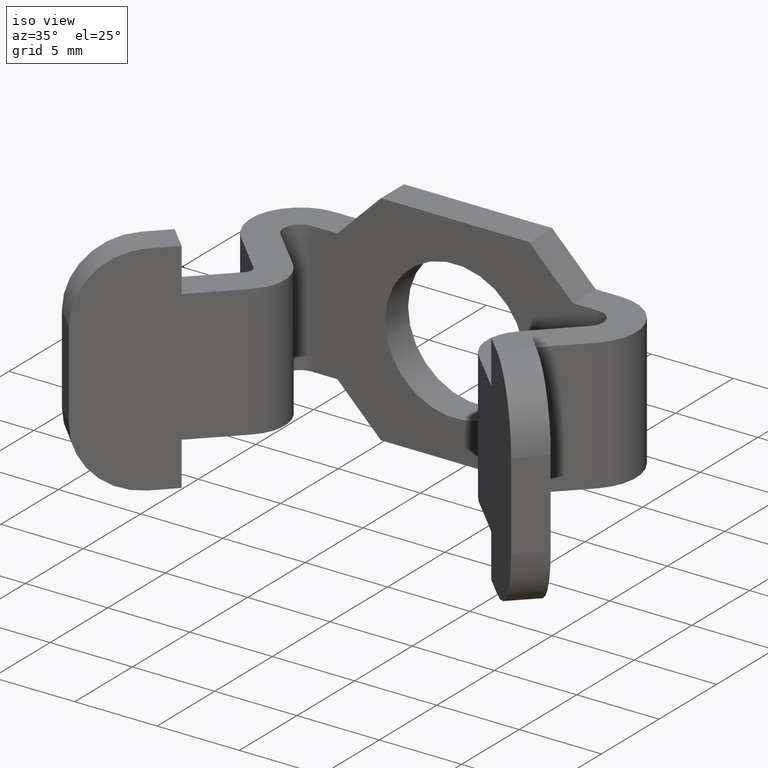
[diagram: clean part render]
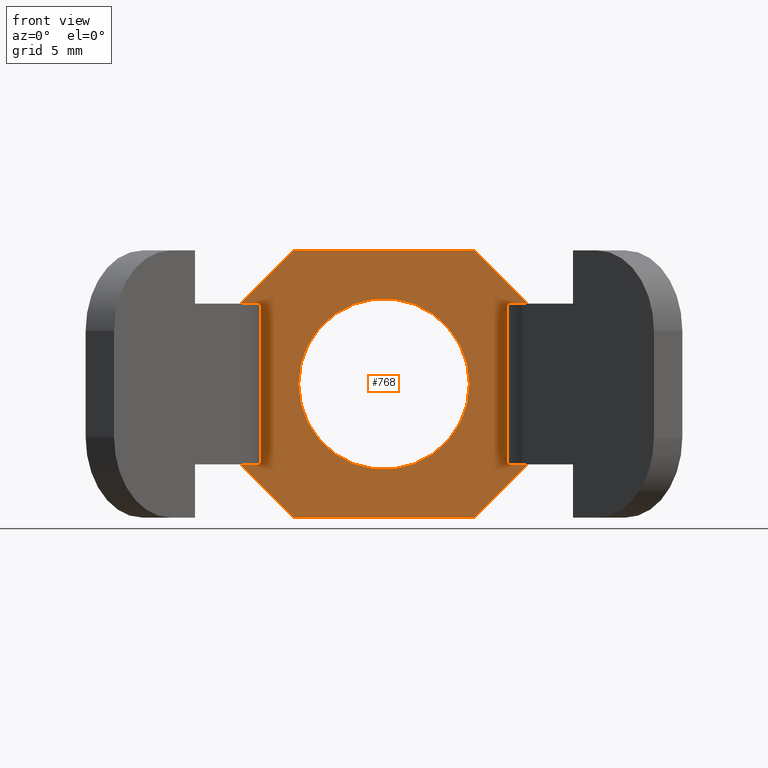
[diagram: tour spotlight — one face highlighted and labeled with its STEP entity id]
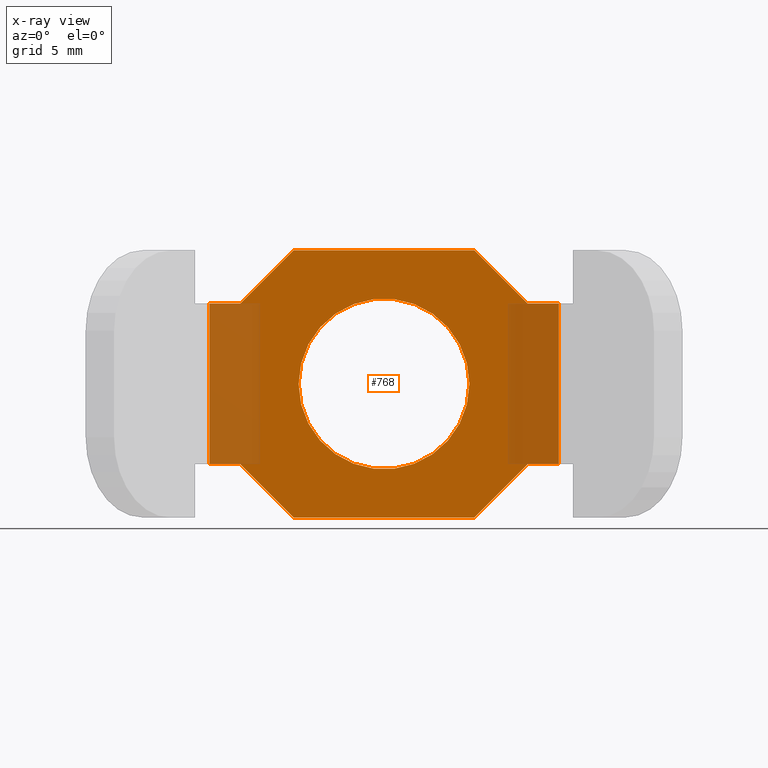
[diagram: x-ray of the same camera — body ghosted, this tour face saturated]
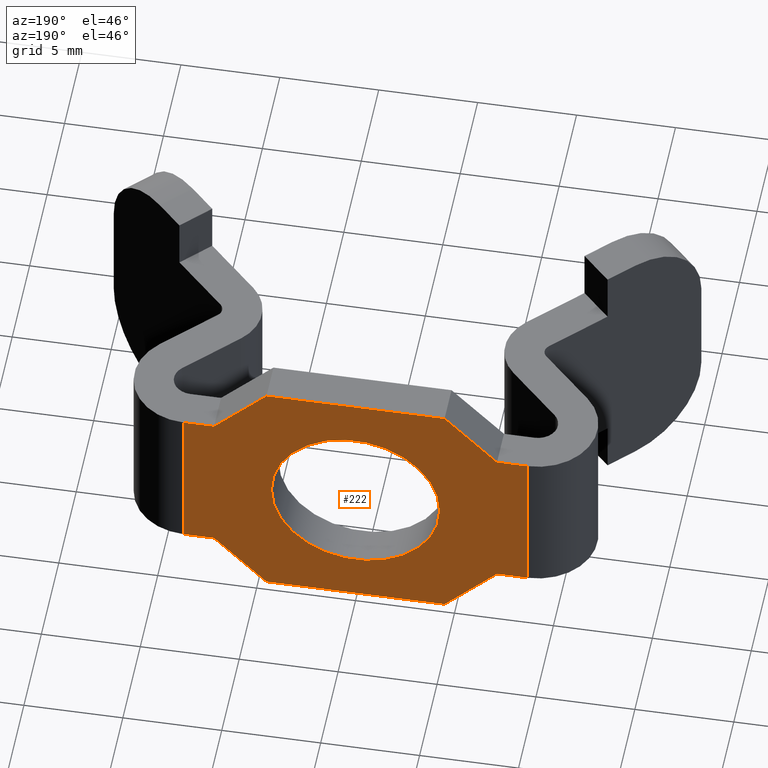
[diagram: tour spotlight — one face highlighted and labeled with its STEP entity id]
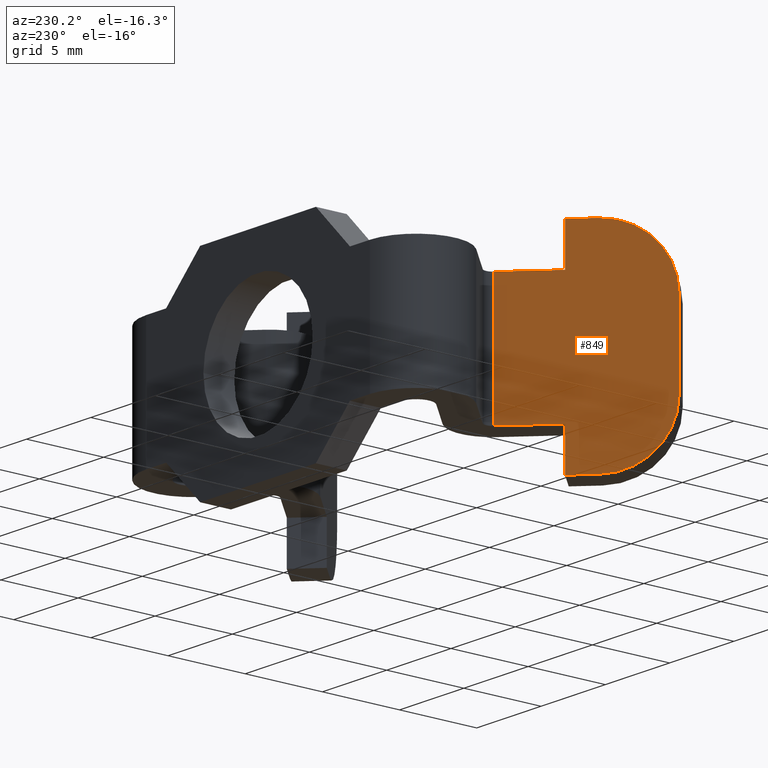
[diagram: tour spotlight — one face highlighted and labeled with its STEP entity id]
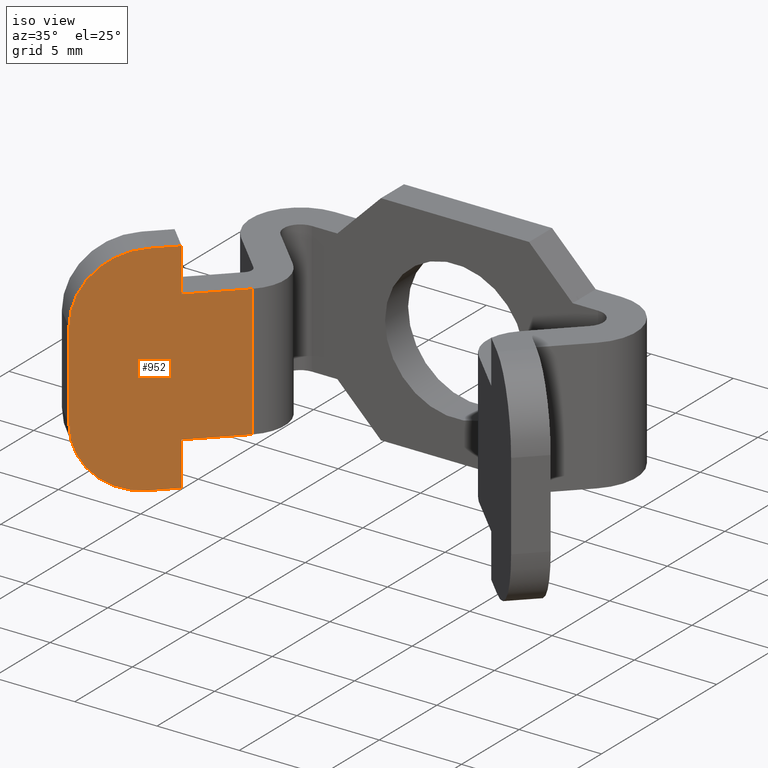
[diagram: tour spotlight — one face highlighted and labeled with its STEP entity id]
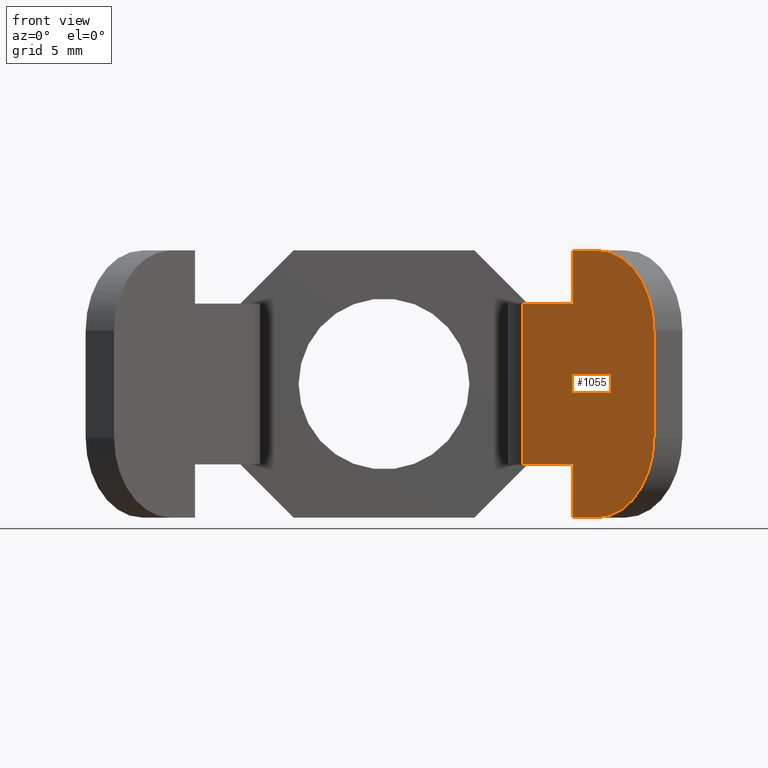
[diagram: tour spotlight — one face highlighted and labeled with its STEP entity id]
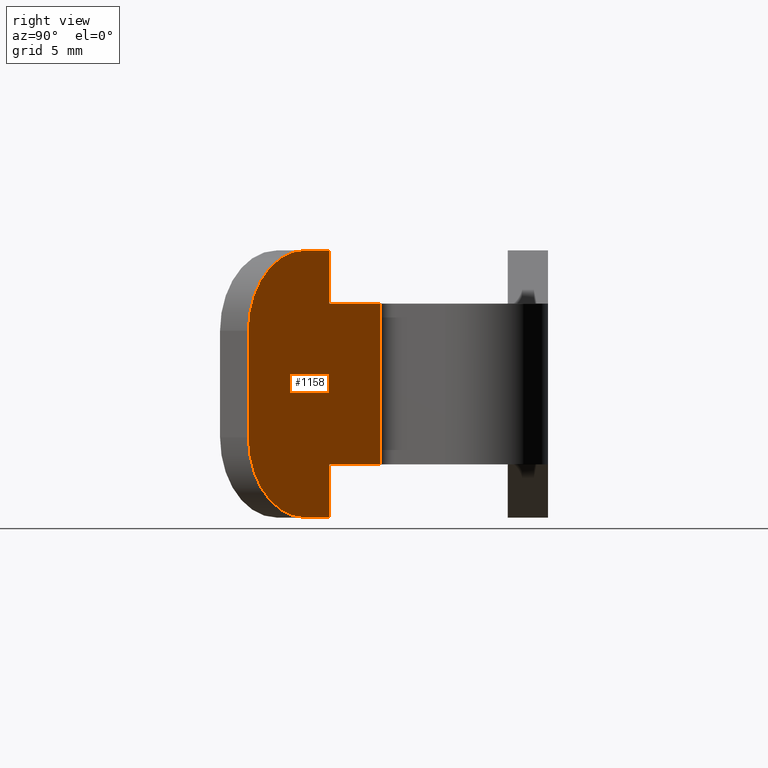
[diagram: tour spotlight — one face highlighted and labeled with its STEP entity id]
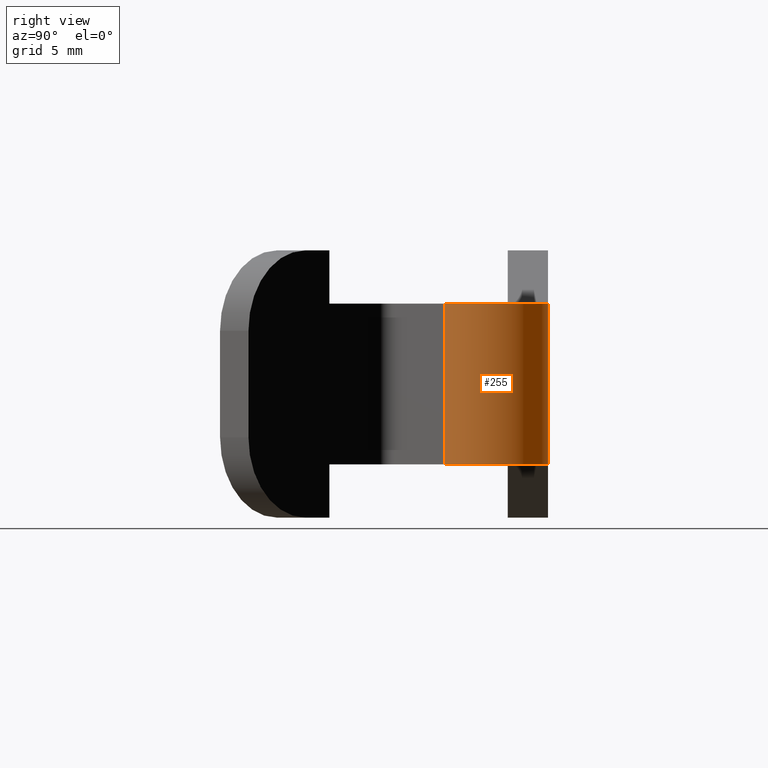
[diagram: tour spotlight — one face highlighted and labeled with its STEP entity id]
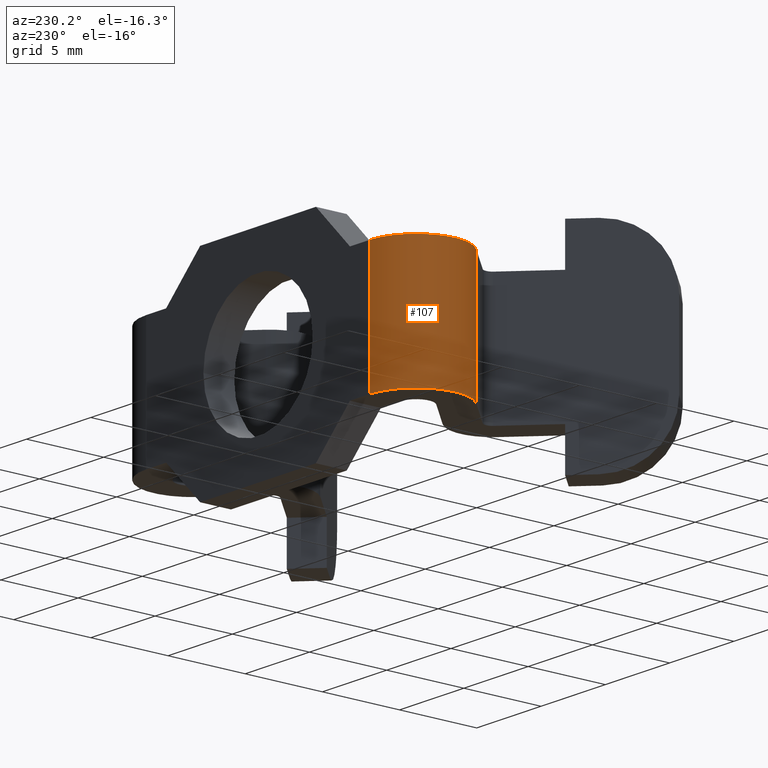
[diagram: tour spotlight — one face highlighted and labeled with its STEP entity id]
A machine part: a face-by-face anatomy tour. The part has 43 B-rep faces; the first image is the clean iso view, then the 8 largest visible faces are spotlighted one at a time (largest first), each with its STEP entity span.

Face 1 — front view, entity #768. An x-ray twin of the same camera follows (body ghosted, this face saturated) — the face is partly hidden behind the body. In plain terms, the highlighted planar face has unit normal (0, 1, 0).
Definition (entity closure, byte-faithful):
#398=CARTESIAN_POINT('',(8.699999999987085,-2.0,-3.999999999984405));
#399=VERTEX_POINT('',#398);
#408=CARTESIAN_POINT('',(8.699999999987085,-2.0,3.999999999983812));
#409=VERTEX_POINT('',#408);
#417=CARTESIAN_POINT('',(8.699999999987085,-2.0,-3.999999999984405));
#418=DIRECTION('',(0.0,0.0,1.0));
#419=VECTOR('',#418,7.999999999968217);
#420=LINE('',#417,#419);
#421=EDGE_CURVE('',#399,#409,#420,.T.);
#431=CARTESIAN_POINT('',(-8.699999813927661,-2.000000000000455,-3.999999999984405));
#432=VERTEX_POINT('',#431);
#433=CARTESIAN_POINT('',(-8.699999813927661,-2.000000000000455,3.999999999983684));
#434=VERTEX_POINT('',#433);
#435=CARTESIAN_POINT('',(-8.699999813927661,-2.000000000000455,-3.999999999984405));
#436=DIRECTION('',(0.0,0.0,1.0));
#437=VECTOR('',#436,7.999999999968090);
#438=LINE('',#435,#437);
#439=EDGE_CURVE('',#432,#434,#438,.T.);
#538=CARTESIAN_POINT('',(4.499999999982265,-2.0,-6.649999999973716));
#539=VERTEX_POINT('',#538);
#546=CARTESIAN_POINT('',(-4.499999999981810,-2.0,-6.649999999973716));
#547=VERTEX_POINT('',#546);
#548=CARTESIAN_POINT('',(4.499999999982265,-2.0,-6.649999999973716));
#549=DIRECTION('',(-1.0,0.0,0.0));
#550=VECTOR('',#549,8.999999999964075);
#551=LINE('',#548,#550);
#552=EDGE_CURVE('',#539,#547,#551,.T.);
#568=CARTESIAN_POINT('',(-4.499999999981810,-2.0,6.649999999973261));
#569=VERTEX_POINT('',#568);
#576=CARTESIAN_POINT('',(4.499999999982265,-2.0,6.649999999973261));
#577=VERTEX_POINT('',#576);
#578=CARTESIAN_POINT('',(4.499999999982265,-2.0,6.649999999973261));
#579=DIRECTION('',(-1.0,0.0,0.0));
#580=VECTOR('',#579,8.999999999964075);
#581=LINE('',#578,#580);
#582=EDGE_CURVE('',#577,#569,#581,.T.);
#601=CARTESIAN_POINT('',(7.149999999971442,-2.0,3.999999999983812));
#602=VERTEX_POINT('',#601);
#603=CARTESIAN_POINT('',(4.499999999982265,-2.0,6.649999999973261));
#604=DIRECTION('',(0.707106781186511,0.0,-0.707106781186584));
#605=VECTOR('',#604,3.747665940273588);
#606=LINE('',#603,#605);
#607=EDGE_CURVE('',#577,#602,#606,.T.);
#623=CARTESIAN_POINT('',(7.149999999971442,-2.0,-3.999999999984405));
#624=VERTEX_POINT('',#623);
#631=CARTESIAN_POINT('',(4.499999999982265,-2.0,-6.649999999973716));
#632=DIRECTION('',(0.707106781186530,0.0,0.707106781186565));
#633=VECTOR('',#632,3.747665940273491);
#634=LINE('',#631,#633);
#635=EDGE_CURVE('',#539,#624,#634,.T.);
#647=CARTESIAN_POINT('',(-7.149999999970987,-2.0,3.999999999983684));
#648=VERTEX_POINT('',#647);
#655=CARTESIAN_POINT('',(-4.499999999981810,-2.0,6.649999999973261));
#656=DIRECTION('',(-0.707106781186494,0.0,-0.707106781186601));
#657=VECTOR('',#656,3.747665940273679);
#658=LINE('',#655,#657);
#659=EDGE_CURVE('',#569,#648,#658,.T.);
#673=CARTESIAN_POINT('',(-7.149999999970987,-2.0,-3.999999999984404));
#674=VERTEX_POINT('',#673);
#675=CARTESIAN_POINT('',(-4.499999999981810,-2.0,-6.649999999973716));
#676=DIRECTION('',(-0.707106781186530,0.0,0.707106781186566));
#677=VECTOR('',#676,3.747665940273491);
#678=LINE('',#675,#677);
#679=EDGE_CURVE('',#547,#674,#678,.T.);
#695=CARTESIAN_POINT('',(4.249999999983174,-2.0,-6.838974E-014));
#696=VERTEX_POINT('',#695);
#703=CARTESIAN_POINT('',(-4.249999999983174,-2.0,-6.838974E-014));
#704=VERTEX_POINT('',#703);
#705=CARTESIAN_POINT('',(0.0,-2.0,-6.838974E-014));
#706=DIRECTION('',(0.0,-1.0,-3.419153E-014));
#707=DIRECTION('',(1.0,0.0,0.0));
#708=AXIS2_PLACEMENT_3D('',#705,#706,#707);
#709=CIRCLE('',#708,4.249999999983174);
#710=EDGE_CURVE('',#696,#704,#709,.T.);
#712=CARTESIAN_POINT('',(0.0,-2.0,-6.838974E-014));
#713=DIRECTION('',(0.0,-1.0,-3.419153E-014));
#714=DIRECTION('',(1.0,0.0,0.0));
#715=AXIS2_PLACEMENT_3D('',#712,#713,#714);
#716=CIRCLE('',#715,4.249999999983174);
#717=EDGE_CURVE('',#704,#696,#716,.T.);
#725=CARTESIAN_POINT('',(8.725073962264105,-2.0,-6.675101390862892));
#726=DIRECTION('',(0.0,1.0,0.0));
#727=DIRECTION('',(-1.0,0.0,0.0));
#728=AXIS2_PLACEMENT_3D('',#725,#726,#727);
#729=PLANE('',#728);
#730=CARTESIAN_POINT('',(8.699999999987085,-2.0,-3.999999999984405));
#731=DIRECTION('',(-1.0,0.0,0.0));
#732=VECTOR('',#731,1.550000000015643);
#733=LINE('',#730,#732);
#734=EDGE_CURVE('',#399,#624,#733,.T.);
#735=ORIENTED_EDGE('',*,*,#734,.F.);
#736=ORIENTED_EDGE('',*,*,#421,.T.);
#737=CARTESIAN_POINT('',(8.699999999987085,-2.0,3.999999999983812));
#738=DIRECTION('',(-1.0,0.0,0.0));
#739=VECTOR('',#738,1.550000000015643);
#740=LINE('',#737,#739);
#741=EDGE_CURVE('',#409,#602,#740,.T.);
#742=ORIENTED_EDGE('',*,*,#741,.T.);
#743=ORIENTED_EDGE('',*,*,#607,.F.);
#744=ORIENTED_EDGE('',*,*,#582,.T.);
#745=ORIENTED_EDGE('',*,*,#659,.T.);
#746=CARTESIAN_POINT('',(-8.699999813927661,-2.000000000000455,3.999999999983684));
#747=DIRECTION('',(1.0,2.933854E-013,0.0));
#748=VECTOR('',#747,1.549999813956674);
#749=LINE('',#746,#748);
#750=EDGE_CURVE('',#434,#648,#749,.T.);
#751=ORIENTED_EDGE('',*,*,#750,.F.);
#752=ORIENTED_EDGE('',*,*,#439,.F.);
#753=CARTESIAN_POINT('',(-8.699999813927661,-2.000000000000455,-3.999999999984405));
#754=DIRECTION('',(1.0,2.933854E-013,8.595276E-016));
#755=VECTOR('',#754,1.549999813956674);
#756=LINE('',#753,#755);
#757=EDGE_CURVE('',#432,#674,#756,.T.);
#758=ORIENTED_EDGE('',*,*,#757,.T.);
#759=ORIENTED_EDGE('',*,*,#679,.F.);
#760=ORIENTED_EDGE('',*,*,#552,.F.);
#761=ORIENTED_EDGE('',*,*,#635,.T.);
#762=EDGE_LOOP('',(#735,#736,#742,#743,#744,#745,#751,#752,#758,#759,#760,#761));
#763=FACE_OUTER_BOUND('',#762,.T.);
#764=ORIENTED_EDGE('',*,*,#717,.F.);
#765=ORIENTED_EDGE('',*,*,#710,.F.);
#766=EDGE_LOOP('',(#764,#765));
#767=FACE_BOUND('',#766,.T.);
#768=ADVANCED_FACE('',(#763,#767),#729,.F.);

Face 2 — auxiliary view, entity #222. In plain terms, the highlighted planar face has unit normal (0, -1, 0).
Definition (entity closure, byte-faithful):
#80=CARTESIAN_POINT('',(-8.699999813927207,4.547474E-013,-3.999999999984337));
#81=VERTEX_POINT('',#80);
#90=CARTESIAN_POINT('',(-8.699999813927207,0.0,3.999999999983755));
#91=VERTEX_POINT('',#90);
#99=CARTESIAN_POINT('',(-8.699999813927207,3.641398E-013,-3.999999999984337));
#100=DIRECTION('',(0.0,0.0,1.0));
#101=VECTOR('',#100,7.999999999968091);
#102=LINE('',#99,#101);
#103=EDGE_CURVE('',#81,#91,#102,.T.);
#108=CARTESIAN_POINT('',(-8.699999813927207,4.547474E-013,-6.649999999973716));
#109=DIRECTION('',(0.0,-1.0,0.0));
#110=DIRECTION('',(1.0,0.0,0.0));
#111=AXIS2_PLACEMENT_3D('',#108,#109,#110);
#112=PLANE('',#111);
#113=CARTESIAN_POINT('',(8.700000000014370,-4.547474E-013,-3.999999999984336));
#114=VERTEX_POINT('',#113);
#115=CARTESIAN_POINT('',(8.700000000014370,-4.547474E-013,3.999999999983881));
#116=VERTEX_POINT('',#115);
#117=CARTESIAN_POINT('',(8.700000000014370,-4.547474E-013,-3.999999999984336));
#118=DIRECTION('',(0.0,0.0,1.0));
#119=VECTOR('',#118,7.999999999968217);
#120=LINE('',#117,#119);
#121=EDGE_CURVE('',#114,#116,#120,.T.);
#122=ORIENTED_EDGE('',*,*,#121,.F.);
#123=CARTESIAN_POINT('',(7.149999999971442,0.0,-3.999999999984336));
#124=VERTEX_POINT('',#123);
#125=CARTESIAN_POINT('',(7.149999999971442,0.0,-3.999999999984336));
#126=DIRECTION('',(1.0,0.0,0.0));
#127=VECTOR('',#126,1.550000000042928);
#128=LINE('',#125,#127);
#129=EDGE_CURVE('',#124,#114,#128,.T.);
#130=ORIENTED_EDGE('',*,*,#129,.F.);
#131=CARTESIAN_POINT('',(4.499999999982265,0.0,-6.649999999973716));
#132=VERTEX_POINT('',#131);
#133=CARTESIAN_POINT('',(4.499999999982265,0.0,-6.649999999973716));
#134=DIRECTION('',(0.707106781186520,0.0,0.707106781186575));
#135=VECTOR('',#134,3.747665940273539);
#136=LINE('',#133,#135);
#137=EDGE_CURVE('',#132,#124,#136,.T.);
#138=ORIENTED_EDGE('',*,*,#137,.F.);
#139=CARTESIAN_POINT('',(-4.499999999981810,0.0,-6.649999999973716));
#140=VERTEX_POINT('',#139);
#141=CARTESIAN_POINT('',(-4.499999999981810,4.547474E-013,-6.649999999973716));
#142=DIRECTION('',(1.0,0.0,0.0));
#143=VECTOR('',#142,8.999999999964075);
#144=LINE('',#141,#143);
#145=EDGE_CURVE('',#140,#132,#144,.T.);
#146=ORIENTED_EDGE('',*,*,#145,.F.);
#147=CARTESIAN_POINT('',(-7.149999999970987,0.0,-3.999999999984336));
#148=VERTEX_POINT('',#147);
#149=CARTESIAN_POINT('',(-7.149999999970987,0.0,-3.999999999984336));
#150=DIRECTION('',(0.707106781186520,0.0,-0.707106781186575));
#151=VECTOR('',#150,3.747665940273539);
#152=LINE('',#149,#151);
#153=EDGE_CURVE('',#148,#140,#152,.T.);
#154=ORIENTED_EDGE('',*,*,#153,.F.);
#155=CARTESIAN_POINT('',(-8.699999813927207,-5.983652E-030,-3.999999999984337));
#156=DIRECTION('',(1.0,0.0,0.0));
#157=VECTOR('',#156,1.549999813956219);
#158=LINE('',#155,#157);
#159=EDGE_CURVE('',#81,#148,#158,.T.);
#160=ORIENTED_EDGE('',*,*,#159,.F.);
#161=ORIENTED_EDGE('',*,*,#103,.T.);
#162=CARTESIAN_POINT('',(-7.149999999970987,4.547474E-013,3.999999999983753));
#163=VERTEX_POINT('',#162);
#164=CARTESIAN_POINT('',(-7.149999999970987,4.547474E-013,3.999999999983753));
#165=DIRECTION('',(-1.0,0.0,0.0));
#166=VECTOR('',#165,1.549999813956219);
#167=LINE('',#164,#166);
#168=EDGE_CURVE('',#163,#91,#167,.T.);
#169=ORIENTED_EDGE('',*,*,#168,.F.);
#170=CARTESIAN_POINT('',(-4.499999999981810,0.0,6.649999999973261));
#171=VERTEX_POINT('',#170);
#172=CARTESIAN_POINT('',(-4.499999999981810,0.0,6.649999999973261));
#173=DIRECTION('',(-0.707106781186520,0.0,-0.707106781186575));
#174=VECTOR('',#173,3.747665940273539);
#175=LINE('',#172,#174);
#176=EDGE_CURVE('',#171,#163,#175,.T.);
#177=ORIENTED_EDGE('',*,*,#176,.F.);
#178=CARTESIAN_POINT('',(4.499999999982265,0.0,6.649999999973261));
#179=VERTEX_POINT('',#178);
#180=CARTESIAN_POINT('',(-4.499999999981810,0.0,6.649999999973261));
#181=DIRECTION('',(1.0,0.0,0.0));
#182=VECTOR('',#181,8.999999999964075);
#183=LINE('',#180,#182);
#184=EDGE_CURVE('',#171,#179,#183,.T.);
#185=ORIENTED_EDGE('',*,*,#184,.T.);
#186=CARTESIAN_POINT('',(7.149999999971442,0.0,3.999999999983881));
#187=VERTEX_POINT('',#186);
#188=CARTESIAN_POINT('',(7.149999999971442,0.0,3.999999999983881));
#189=DIRECTION('',(-0.707106781186520,0.0,0.707106781186575));
#190=VECTOR('',#189,3.747665940273539);
#191=LINE('',#188,#190);
#192=EDGE_CURVE('',#187,#179,#191,.T.);
#193=ORIENTED_EDGE('',*,*,#192,.F.);
#194=CARTESIAN_POINT('',(8.700000000014370,1.206563E-012,3.999999999983881));
#195=DIRECTION('',(-1.0,1.017282E-013,0.0));
#196=VECTOR('',#195,1.550000000042928);
#197=LINE('',#194,#196);
#198=EDGE_CURVE('',#116,#187,#197,.T.);
#199=ORIENTED_EDGE('',*,*,#198,.F.);
#200=EDGE_LOOP('',(#122,#130,#138,#146,#154,#160,#161,#169,#177,#185,#193,#199));
#201=FACE_OUTER_BOUND('',#200,.T.);
#202=CARTESIAN_POINT('',(-4.249999999983174,0.0,0.0));
#203=VERTEX_POINT('',#202);
#204=CARTESIAN_POINT('',(4.249999999983174,0.0,0.0));
#205=VERTEX_POINT('',#204);
#206=CARTESIAN_POINT('',(0.0,0.0,0.0));
#207=DIRECTION('',(0.0,1.0,3.419153E-014));
#208=DIRECTION('',(1.0,0.0,0.0));
#209=AXIS2_PLACEMENT_3D('',#206,#207,#208);
#210=CIRCLE('',#209,4.249999999983174);
#211=EDGE_CURVE('',#203,#205,#210,.T.);
#212=ORIENTED_EDGE('',*,*,#211,.F.);
#213=CARTESIAN_POINT('',(0.0,0.0,0.0));
#214=DIRECTION('',(0.0,1.0,3.419153E-014));
#215=DIRECTION('',(1.0,0.0,0.0));
#216=AXIS2_PLACEMENT_3D('',#213,#214,#215);
#217=CIRCLE('',#216,4.249999999983174);
#218=EDGE_CURVE('',#205,#203,#217,.T.);
#219=ORIENTED_EDGE('',*,*,#218,.F.);
#220=EDGE_LOOP('',(#212,#219));
#221=FACE_BOUND('',#220,.T.);
#222=ADVANCED_FACE('',(#201,#221),#112,.F.);

Face 3 — auxiliary view, entity #849. In plain terms, the highlighted planar face has unit normal (0.7071, -0.7071, 0).
Definition (entity closure, byte-faithful):
#9=CARTESIAN_POINT('',(-8.296193999966818,-8.353552999930798,-3.999999999984453));
#10=VERTEX_POINT('',#9);
#18=CARTESIAN_POINT('',(-8.296193999966818,-8.353552999930798,3.999999999982958));
#19=VERTEX_POINT('',#18);
#20=CARTESIAN_POINT('',(-8.296193999966818,-8.353552999930798,-3.999999999984453));
#21=DIRECTION('',(0.0,0.0,1.0));
#22=VECTOR('',#21,7.999999999967411);
#23=LINE('',#20,#22);
#24=EDGE_CURVE('',#10,#19,#23,.T.);
#769=CARTESIAN_POINT('',(-14.851828999940153,-14.909187999904589,-6.649999999973716));
#770=DIRECTION('',(0.707106781186548,-0.707106781186548,0.0));
#771=DIRECTION('',(0.707106781186548,0.707106781186548,0.0));
#772=AXIS2_PLACEMENT_3D('',#769,#770,#771);
#773=PLANE('',#772);
#774=CARTESIAN_POINT('',(-14.851828999940608,-14.909187999904134,2.649999999973261));
#775=VERTEX_POINT('',#774);
#776=CARTESIAN_POINT('',(-12.023401875194395,-12.080760875157466,6.649999999973261));
#777=VERTEX_POINT('',#776);
#778=CARTESIAN_POINT('',(-12.023401875193940,-12.080760875158376,2.649999999973261));
#779=DIRECTION('',(-0.707106781186604,0.707106781186491,0.0));
#780=DIRECTION('',(-0.707106781186491,-0.707106781186604,0.0));
#781=AXIS2_PLACEMENT_3D('',#778,#779,#780);
#782=CIRCLE('',#781,4.000000000000354);
#783=EDGE_CURVE('',#775,#777,#782,.T.);
#784=ORIENTED_EDGE('',*,*,#783,.T.);
#785=CARTESIAN_POINT('',(-10.821320562315577,-10.878679562280013,6.649999999973261));
#786=VERTEX_POINT('',#785);
#787=CARTESIAN_POINT('',(-12.023401875193713,-12.080760875158148,6.649999999973261));
#788=DIRECTION('',(0.707106781186547,0.707106781186547,0.0));
#789=VECTOR('',#788,1.699999695747515);
#790=LINE('',#787,#789);
#791=EDGE_CURVE('',#777,#786,#790,.T.);
#792=ORIENTED_EDGE('',*,*,#791,.T.);
#793=CARTESIAN_POINT('',(-10.821320562314668,-10.878679562279103,3.999999999982871));
#794=VERTEX_POINT('',#793);
#795=CARTESIAN_POINT('',(-10.821320562315577,-10.878679562280013,6.649999999973261));
#796=DIRECTION('',(3.432055E-013,3.432055E-013,-1.0));
#797=VECTOR('',#796,2.649999999990390);
#798=LINE('',#795,#797);
#799=EDGE_CURVE('',#786,#794,#798,.T.);
#800=ORIENTED_EDGE('',*,*,#799,.T.);
#801=CARTESIAN_POINT('',(-8.296193999966818,-8.353552999930798,3.999999999982958));
#802=DIRECTION('',(-0.707106781186484,-0.707106781186611,-2.437408E-014));
#803=VECTOR('',#802,3.571068231181202);
#804=LINE('',#801,#803);
#805=EDGE_CURVE('',#19,#794,#804,.T.);
#806=ORIENTED_EDGE('',*,*,#805,.F.);
#807=ORIENTED_EDGE('',*,*,#24,.F.);
#808=CARTESIAN_POINT('',(-10.821320562316032,-10.878679562280013,-3.999999999984539));
#809=VERTEX_POINT('',#808);
#810=CARTESIAN_POINT('',(-8.296193999966818,-8.353552999930798,-3.999999999984453));
#811=DIRECTION('',(-0.707106781186547,-0.707106781186547,-2.412536E-014));
#812=VECTOR('',#811,3.571068231182810);
#813=LINE('',#810,#812);
#814=EDGE_CURVE('',#10,#809,#813,.T.);
#815=ORIENTED_EDGE('',*,*,#814,.T.);
#816=CARTESIAN_POINT('',(-10.821320562315577,-10.878679562280013,-6.649999999973716));
#817=VERTEX_POINT('',#816);
#818=CARTESIAN_POINT('',(-10.821320562315577,-10.878679562280013,-6.649999999973716));
#819=DIRECTION('',(-1.716028E-013,0.0,1.0));
#820=VECTOR('',#819,2.649999999989177);
#821=LINE('',#818,#820);
#822=EDGE_CURVE('',#817,#809,#821,.T.);
#823=ORIENTED_EDGE('',*,*,#822,.F.);
#824=CARTESIAN_POINT('',(-12.023401875194395,-12.080760875157921,-6.649999999973716));
#825=VERTEX_POINT('',#824);
#826=CARTESIAN_POINT('',(-12.023401875193940,-12.080760875158376,-6.649999999973716));
#827=DIRECTION('',(0.707106781186548,0.707106781186548,0.0));
#828=VECTOR('',#827,1.699999695747837);
#829=LINE('',#826,#828);
#830=EDGE_CURVE('',#825,#817,#829,.T.);
#831=ORIENTED_EDGE('',*,*,#830,.F.);
#832=CARTESIAN_POINT('',(-14.851828999940608,-14.909187999904134,-2.649999999973716));
#833=VERTEX_POINT('',#832);
#834=CARTESIAN_POINT('',(-12.023401875193942,-12.080760875158377,-2.649999999973716));
#835=DIRECTION('',(0.707106781186548,-0.707106781186548,0.0));
#836=DIRECTION('',(-0.707106781186548,-0.707106781186548,0.0));
#837=AXIS2_PLACEMENT_3D('',#834,#835,#836);
#838=CIRCLE('',#837,4.000000000000032);
#839=EDGE_CURVE('',#833,#825,#838,.T.);
#840=ORIENTED_EDGE('',*,*,#839,.F.);
#841=CARTESIAN_POINT('',(-14.851828999940153,-14.909187999904589,-2.649999999973716));
#842=DIRECTION('',(0.0,0.0,1.0));
#843=VECTOR('',#842,5.299999999946977);
#844=LINE('',#841,#843);
#845=EDGE_CURVE('',#833,#775,#844,.T.);
#846=ORIENTED_EDGE('',*,*,#845,.T.);
#847=EDGE_LOOP('',(#784,#792,#800,#806,#807,#815,#823,#831,#840,#846));
#848=FACE_OUTER_BOUND('',#847,.T.);
#849=ADVANCED_FACE('',(#848),#773,.F.);

Face 4 — iso view, entity #952. In plain terms, the highlighted planar face has unit normal (-0.7071, 0.7071, 0).
Definition (entity closure, byte-faithful):
#505=CARTESIAN_POINT('',(-6.881980437593938,-9.767766562303223,3.999999999982908));
#506=VERTEX_POINT('',#505);
#514=CARTESIAN_POINT('',(-6.881980437593938,-9.767766562303223,-3.999999999984501));
#515=VERTEX_POINT('',#514);
#516=CARTESIAN_POINT('',(-6.881980437593938,-9.767766562303223,-3.999999999984501));
#517=DIRECTION('',(0.0,0.0,1.0));
#518=VECTOR('',#517,7.999999999967409);
#519=LINE('',#516,#518);
#520=EDGE_CURVE('',#515,#506,#519,.T.);
#855=CARTESIAN_POINT('',(-13.437615437567729,-16.323401562277013,-2.649999999973716));
#856=VERTEX_POINT('',#855);
#864=CARTESIAN_POINT('',(-10.609188312821516,-13.494974437530800,-6.649999999973716));
#865=VERTEX_POINT('',#864);
#872=CARTESIAN_POINT('',(-10.609188312821518,-13.494974437530802,-2.649999999973716));
#873=DIRECTION('',(0.707106781186548,-0.707106781186548,0.0));
#874=DIRECTION('',(-0.707106781186548,-0.707106781186548,0.0));
#875=AXIS2_PLACEMENT_3D('',#872,#873,#874);
#876=CIRCLE('',#875,4.000000000000032);
#877=EDGE_CURVE('',#856,#865,#876,.T.);
#882=CARTESIAN_POINT('',(-6.881980437593938,-9.767766562303223,-6.649999999973716));
#883=DIRECTION('',(-0.707106781186548,0.707106781186548,0.0));
#884=DIRECTION('',(-0.707106781186548,-0.707106781186548,0.0));
#885=AXIS2_PLACEMENT_3D('',#882,#883,#884);
#886=PLANE('',#885);
#887=ORIENTED_EDGE('',*,*,#877,.T.);
#888=CARTESIAN_POINT('',(-9.407106999943608,-12.292893124652892,-6.649999999973716));
#889=VERTEX_POINT('',#888);
#890=CARTESIAN_POINT('',(-9.407106999943604,-12.292893124652888,-6.649999999973716));
#891=DIRECTION('',(-0.707106781186548,-0.707106781186548,0.0));
#892=VECTOR('',#891,1.699999695747199);
#893=LINE('',#890,#892);
#894=EDGE_CURVE('',#889,#865,#893,.T.);
#895=ORIENTED_EDGE('',*,*,#894,.F.);
#896=CARTESIAN_POINT('',(-9.407106999943608,-12.292893124652892,-3.999999999984539));
#897=VERTEX_POINT('',#896);
#898=CARTESIAN_POINT('',(-9.407106999943608,-12.292893124652892,-6.649999999973716));
#899=DIRECTION('',(0.0,0.0,1.0));
#900=VECTOR('',#899,2.649999999989177);
#901=LINE('',#898,#900);
#902=EDGE_CURVE('',#889,#897,#901,.T.);
#903=ORIENTED_EDGE('',*,*,#902,.T.);
#904=CARTESIAN_POINT('',(-9.407106999943608,-12.292893124652892,-3.999999999984539));
#905=DIRECTION('',(0.707106781186547,0.707106781186547,1.057039E-014));
#906=VECTOR('',#905,3.571068231183453);
#907=LINE('',#904,#906);
#908=EDGE_CURVE('',#897,#515,#907,.T.);
#909=ORIENTED_EDGE('',*,*,#908,.T.);
#910=ORIENTED_EDGE('',*,*,#520,.T.);
#911=CARTESIAN_POINT('',(-9.407106999942698,-12.292893124651982,3.999999999982871));
#912=VERTEX_POINT('',#911);
#913=CARTESIAN_POINT('',(-6.881980437593938,-9.767766562303223,3.999999999982908));
#914=DIRECTION('',(-0.707106781186548,-0.707106781186548,-1.044603E-014));
#915=VECTOR('',#914,3.571068231182167);
#916=LINE('',#913,#915);
#917=EDGE_CURVE('',#506,#912,#916,.T.);
#918=ORIENTED_EDGE('',*,*,#917,.T.);
#919=CARTESIAN_POINT('',(-9.407106999943153,-12.292893124652437,6.649999999973261));
#920=VERTEX_POINT('',#919);
#921=CARTESIAN_POINT('',(-9.407106999943153,-12.292893124652437,6.649999999973261));
#922=DIRECTION('',(1.716028E-013,1.716028E-013,-1.0));
#923=VECTOR('',#922,2.649999999990390);
#924=LINE('',#921,#923);
#925=EDGE_CURVE('',#920,#912,#924,.T.);
#926=ORIENTED_EDGE('',*,*,#925,.F.);
#927=CARTESIAN_POINT('',(-10.609188312821516,-13.494974437530345,6.649999999973261));
#928=VERTEX_POINT('',#927);
#929=CARTESIAN_POINT('',(-9.407106999943185,-12.292893124652469,6.649999999973261));
#930=DIRECTION('',(-0.707106781186547,-0.707106781186547,0.0));
#931=VECTOR('',#930,1.699999695747470);
#932=LINE('',#929,#931);
#933=EDGE_CURVE('',#920,#928,#932,.T.);
#934=ORIENTED_EDGE('',*,*,#933,.T.);
#935=CARTESIAN_POINT('',(-13.437615437567729,-16.323401562277013,2.649999999973261));
#936=VERTEX_POINT('',#935);
#937=CARTESIAN_POINT('',(-10.609188312821065,-13.494974437530804,2.649999999973261));
#938=DIRECTION('',(-0.707106781186604,0.707106781186491,0.0));
#939=DIRECTION('',(-0.707106781186491,-0.707106781186604,0.0));
#940=AXIS2_PLACEMENT_3D('',#937,#938,#939);
#941=CIRCLE('',#940,4.000000000000354);
#942=EDGE_CURVE('',#936,#928,#941,.T.);
#943=ORIENTED_EDGE('',*,*,#942,.F.);
#944=CARTESIAN_POINT('',(-13.437615437567729,-16.323401562277013,-2.649999999973716));
#945=DIRECTION('',(0.0,0.0,1.0));
#946=VECTOR('',#945,5.299999999946977);
#947=LINE('',#944,#946);
#948=EDGE_CURVE('',#856,#936,#947,.T.);
#949=ORIENTED_EDGE('',*,*,#948,.F.);
#950=EDGE_LOOP('',(#887,#895,#903,#909,#910,#918,#926,#934,#943,#949));
#951=FACE_OUTER_BOUND('',#950,.T.);
#952=ADVANCED_FACE('',(#951),#886,.F.);

Face 5 — front view, entity #1055. In plain terms, the highlighted planar face has unit normal (0.7071, 0.7071, 0).
Definition (entity closure, byte-faithful):
#327=CARTESIAN_POINT('',(6.881980511941492,-9.767766636471151,-3.999999999984501));
#328=VERTEX_POINT('',#327);
#336=CARTESIAN_POINT('',(6.881980511941492,-9.767766636471151,3.999999999982908));
#337=VERTEX_POINT('',#336);
#338=CARTESIAN_POINT('',(6.881980511941492,-9.767766636471151,-3.999999999984501));
#339=DIRECTION('',(0.0,0.0,1.0));
#340=VECTOR('',#339,7.999999999967409);
#341=LINE('',#338,#340);
#342=EDGE_CURVE('',#328,#337,#341,.T.);
#975=CARTESIAN_POINT('',(13.437615437549084,-16.323401562257914,-6.649999999973716));
#976=DIRECTION('',(0.707106781196235,0.707106781176860,0.0));
#977=DIRECTION('',(-0.707106781176860,0.707106781196235,0.0));
#978=AXIS2_PLACEMENT_3D('',#975,#976,#977);
#979=PLANE('',#978);
#980=CARTESIAN_POINT('',(13.437615437548629,-16.323401562258368,2.649999999973165));
#981=VERTEX_POINT('',#980);
#982=CARTESIAN_POINT('',(10.609188312841070,-13.494974437473502,6.649999999973261));
#983=VERTEX_POINT('',#982);
#984=CARTESIAN_POINT('',(10.609188312841072,-13.494974437473049,2.649999999973261));
#985=DIRECTION('',(-0.707106781196268,-0.707106781176827,5.891213E-027));
#986=DIRECTION('',(0.707106781176827,-0.707106781196268,-2.442491E-014));
#987=AXIS2_PLACEMENT_3D('',#984,#985,#986);
#988=CIRCLE('',#987,4.000000000000354);
#989=EDGE_CURVE('',#981,#983,#988,.T.);
#990=ORIENTED_EDGE('',*,*,#989,.T.);
#991=CARTESIAN_POINT('',(9.407107000034102,-12.292893124632428,6.649999999973261));
#992=VERTEX_POINT('',#991);
#993=CARTESIAN_POINT('',(10.609188312841621,-13.494974437472951,6.649999999973261));
#994=DIRECTION('',(-0.707106781176860,0.707106781196235,0.0));
#995=VECTOR('',#994,1.699999695671038);
#996=LINE('',#993,#995);
#997=EDGE_CURVE('',#983,#992,#996,.T.);
#998=ORIENTED_EDGE('',*,*,#997,.T.);
#999=CARTESIAN_POINT('',(9.407107000033648,-12.292893124632883,3.999999999982871));
#1000=VERTEX_POINT('',#999);
#1001=CARTESIAN_POINT('',(9.407107000034102,-12.292893124632428,6.649999999973261));
#1002=DIRECTION('',(-1.716028E-013,-1.716028E-013,-1.0));
#1003=VECTOR('',#1002,2.649999999990390);
#1004=LINE('',#1001,#1003);
#1005=EDGE_CURVE('',#992,#1000,#1004,.T.);
#1006=ORIENTED_EDGE('',*,*,#1005,.T.);
#1007=CARTESIAN_POINT('',(9.407107000033648,-12.292893124632883,3.999999999982871));
#1008=DIRECTION('',(-0.707106781176806,0.707106781196289,1.044603E-014));
#1009=VECTOR('',#1008,3.571068126216668);
#1010=LINE('',#1007,#1009);
#1011=EDGE_CURVE('',#1000,#337,#1010,.T.);
#1012=ORIENTED_EDGE('',*,*,#1011,.T.);
#1013=ORIENTED_EDGE('',*,*,#342,.F.);
#1014=CARTESIAN_POINT('',(9.407107000035012,-12.292893124633792,-3.999999999984539));
#1015=VERTEX_POINT('',#1014);
#1016=CARTESIAN_POINT('',(6.881980511941492,-9.767766636471151,-3.999999999984501));
#1017=DIRECTION('',(0.707106781176870,-0.707106781196226,-1.044603E-014));
#1018=VECTOR('',#1017,3.571068126218275);
#1019=LINE('',#1016,#1018);
#1020=EDGE_CURVE('',#328,#1015,#1019,.T.);
#1021=ORIENTED_EDGE('',*,*,#1020,.T.);
#1022=CARTESIAN_POINT('',(9.407107000035467,-12.292893124633792,-6.649999999973716));
#1023=VERTEX_POINT('',#1022);
#1024=CARTESIAN_POINT('',(9.407107000035467,-12.292893124633792,-6.649999999973716));
#1025=DIRECTION('',(-1.716028E-013,0.0,1.0));
#1026=VECTOR('',#1025,2.649999999989177);
#1027=LINE('',#1024,#1026);
#1028=EDGE_CURVE('',#1023,#1015,#1027,.T.);
#1029=ORIENTED_EDGE('',*,*,#1028,.F.);
#1030=CARTESIAN_POINT('',(10.609188312841070,-13.494974437473047,-6.649999999973716));
#1031=VERTEX_POINT('',#1030);
#1032=CARTESIAN_POINT('',(10.609188312841393,-13.494974437472724,-6.649999999973716));
#1033=DIRECTION('',(-0.707106781176860,0.707106781196235,0.0));
#1034=VECTOR('',#1033,1.699999695668722);
#1035=LINE('',#1032,#1034);
#1036=EDGE_CURVE('',#1031,#1023,#1035,.T.);
#1037=ORIENTED_EDGE('',*,*,#1036,.F.);
#1038=CARTESIAN_POINT('',(13.437615437548629,-16.323401562257914,-2.649999999973812));
#1039=VERTEX_POINT('',#1038);
#1040=CARTESIAN_POINT('',(10.609188312841072,-13.494974437472592,-2.649999999973716));
#1041=DIRECTION('',(0.707106781196268,0.707106781176827,-5.835993E-027));
#1042=DIRECTION('',(0.707106781176827,-0.707106781196268,-2.420286E-014));
#1043=AXIS2_PLACEMENT_3D('',#1040,#1041,#1042);
#1044=CIRCLE('',#1043,4.000000000000354);
#1045=EDGE_CURVE('',#1039,#1031,#1044,.T.);
#1046=ORIENTED_EDGE('',*,*,#1045,.F.);
#1047=CARTESIAN_POINT('',(13.437615437549084,-16.323401562257914,-2.649999999973812));
#1048=DIRECTION('',(0.0,0.0,1.0));
#1049=VECTOR('',#1048,5.299999999946977);
#1050=LINE('',#1047,#1049);
#1051=EDGE_CURVE('',#1039,#981,#1050,.T.);
#1052=ORIENTED_EDGE('',*,*,#1051,.T.);
#1053=EDGE_LOOP('',(#990,#998,#1006,#1012,#1013,#1021,#1029,#1037,#1046,#1052));
#1054=FACE_OUTER_BOUND('',#1053,.T.);
#1055=ADVANCED_FACE('',(#1054),#979,.F.);

Face 6 — right view, entity #1158. In plain terms, the highlighted planar face has unit normal (-0.7071, -0.7071, 0).
Definition (entity closure, byte-faithful):
#292=CARTESIAN_POINT('',(8.296194074335745,-8.353553074119191,3.999999999982958));
#293=VERTEX_POINT('',#292);
#301=CARTESIAN_POINT('',(8.296194074335745,-8.353553074119191,-3.999999999984453));
#302=VERTEX_POINT('',#301);
#303=CARTESIAN_POINT('',(8.296194074335745,-8.353553074119191,-3.999999999984453));
#304=DIRECTION('',(0.0,0.0,1.0));
#305=VECTOR('',#304,7.999999999967411);
#306=LINE('',#303,#305);
#307=EDGE_CURVE('',#302,#293,#306,.T.);
#1061=CARTESIAN_POINT('',(14.851828999941063,-14.909187999904134,-2.649999999973812));
#1062=VERTEX_POINT('',#1061);
#1070=CARTESIAN_POINT('',(12.023401875233503,-12.080760875118813,-6.649999999973716));
#1071=VERTEX_POINT('',#1070);
#1078=CARTESIAN_POINT('',(12.023401875233501,-12.080760875118811,-2.649999999973716));
#1079=DIRECTION('',(0.707106781196268,0.707106781176827,-5.835993E-027));
#1080=DIRECTION('',(0.707106781176827,-0.707106781196268,-2.420286E-014));
#1081=AXIS2_PLACEMENT_3D('',#1078,#1079,#1080);
#1082=CIRCLE('',#1081,4.000000000000354);
#1083=EDGE_CURVE('',#1062,#1071,#1082,.T.);
#1088=CARTESIAN_POINT('',(8.296194074335745,-8.353553074119191,-6.649999999973716));
#1089=DIRECTION('',(-0.707106781196235,-0.707106781176860,0.0));
#1090=DIRECTION('',(0.707106781176860,-0.707106781196235,0.0));
#1091=AXIS2_PLACEMENT_3D('',#1088,#1089,#1090);
#1092=PLANE('',#1091);
#1093=ORIENTED_EDGE('',*,*,#1083,.T.);
#1094=CARTESIAN_POINT('',(10.821320562427445,-10.878679562280013,-6.649999999973716));
#1095=VERTEX_POINT('',#1094);
#1096=CARTESIAN_POINT('',(10.821320562427378,-10.878679562280013,-6.649999999973716));
#1097=DIRECTION('',(0.707106781176860,-0.707106781196235,0.0));
#1098=VECTOR('',#1097,1.699999695668782);
#1099=LINE('',#1096,#1098);
#1100=EDGE_CURVE('',#1095,#1071,#1099,.T.);
#1101=ORIENTED_EDGE('',*,*,#1100,.F.);
#1102=CARTESIAN_POINT('',(10.821320562427900,-10.878679562280013,-3.999999999984540));
#1103=VERTEX_POINT('',#1102);
#1104=CARTESIAN_POINT('',(10.821320562427445,-10.878679562280013,-6.649999999973716));
#1105=DIRECTION('',(1.716028E-013,0.0,1.0));
#1106=VECTOR('',#1105,2.649999999989176);
#1107=LINE('',#1104,#1106);
#1108=EDGE_CURVE('',#1095,#1103,#1107,.T.);
#1109=ORIENTED_EDGE('',*,*,#1108,.T.);
#1110=CARTESIAN_POINT('',(8.296194074335745,-8.353553074119191,-3.999999999984453));
#1111=DIRECTION('',(0.707106781176933,-0.707106781196162,-2.424972E-014));
#1112=VECTOR('',#1111,3.571068126216025);
#1113=LINE('',#1110,#1112);
#1114=EDGE_CURVE('',#302,#1103,#1113,.T.);
#1115=ORIENTED_EDGE('',*,*,#1114,.F.);
#1116=ORIENTED_EDGE('',*,*,#307,.T.);
#1117=CARTESIAN_POINT('',(10.821320562426990,-10.878679562278649,3.999999999982871));
#1118=VERTEX_POINT('',#1117);
#1119=CARTESIAN_POINT('',(8.296194074335745,-8.353553074119191,3.999999999982958));
#1120=DIRECTION('',(0.707106781176997,-0.707106781196098,-2.437408E-014));
#1121=VECTOR('',#1120,3.571068126214417);
#1122=LINE('',#1119,#1121);
#1123=EDGE_CURVE('',#293,#1118,#1122,.T.);
#1124=ORIENTED_EDGE('',*,*,#1123,.T.);
#1125=CARTESIAN_POINT('',(10.821320562427445,-10.878679562280013,6.649999999973261));
#1126=VERTEX_POINT('',#1125);
#1127=CARTESIAN_POINT('',(10.821320562427445,-10.878679562280013,6.649999999973261));
#1128=DIRECTION('',(-1.716028E-013,5.148083E-013,-1.0));
#1129=VECTOR('',#1128,2.649999999990390);
#1130=LINE('',#1127,#1129);
#1131=EDGE_CURVE('',#1126,#1118,#1130,.T.);
#1132=ORIENTED_EDGE('',*,*,#1131,.F.);
#1133=CARTESIAN_POINT('',(12.023401875233503,-12.080760875119267,6.649999999973261));
#1134=VERTEX_POINT('',#1133);
#1135=CARTESIAN_POINT('',(10.821320562427378,-10.878679562280013,6.649999999973261));
#1136=DIRECTION('',(0.707106781176860,-0.707106781196235,0.0));
#1137=VECTOR('',#1136,1.699999695669104);
#1138=LINE('',#1135,#1137);
#1139=EDGE_CURVE('',#1126,#1134,#1138,.T.);
#1140=ORIENTED_EDGE('',*,*,#1139,.T.);
#1141=CARTESIAN_POINT('',(14.851828999941063,-14.909187999904589,2.649999999973163));
#1142=VERTEX_POINT('',#1141);
#1143=CARTESIAN_POINT('',(12.023401875233505,-12.080760875119269,2.649999999973261));
#1144=DIRECTION('',(-0.707106781196268,-0.707106781176827,5.891213E-027));
#1145=DIRECTION('',(0.707106781176827,-0.707106781196268,-2.442491E-014));
#1146=AXIS2_PLACEMENT_3D('',#1143,#1144,#1145);
#1147=CIRCLE('',#1146,4.000000000000354);
#1148=EDGE_CURVE('',#1142,#1134,#1147,.T.);
#1149=ORIENTED_EDGE('',*,*,#1148,.F.);
#1150=CARTESIAN_POINT('',(14.851828999941063,-14.909187999904271,-2.649999999973812));
#1151=DIRECTION('',(0.0,0.0,1.0));
#1152=VECTOR('',#1151,5.299999999946976);
#1153=LINE('',#1150,#1152);
#1154=EDGE_CURVE('',#1062,#1142,#1153,.T.);
#1155=ORIENTED_EDGE('',*,*,#1154,.F.);
#1156=EDGE_LOOP('',(#1093,#1101,#1109,#1115,#1116,#1124,#1132,#1140,#1149,#1155));
#1157=FACE_OUTER_BOUND('',#1156,.T.);
#1158=ADVANCED_FACE('',(#1157),#1092,.F.);

Face 7 — right view, entity #255. In plain terms, the highlighted cylindrical surface (partial cylindrical patch) has radius 3 mm, axis along (0, 0, -1).
Definition (entity closure, byte-faithful):
#113=CARTESIAN_POINT('',(8.700000000014370,-4.547474E-013,-3.999999999984336));
#114=VERTEX_POINT('',#113);
#115=CARTESIAN_POINT('',(8.700000000014370,-4.547474E-013,3.999999999983881));
#116=VERTEX_POINT('',#115);
#117=CARTESIAN_POINT('',(8.700000000014370,-4.547474E-013,-3.999999999984336));
#118=DIRECTION('',(0.0,0.0,1.0));
#119=VECTOR('',#118,7.999999999968217);
#120=LINE('',#117,#119);
#121=EDGE_CURVE('',#114,#116,#120,.T.);
#223=CARTESIAN_POINT('',(8.700000000014370,-2.999999715339072,-6.649999999973716));
#224=DIRECTION('',(0.0,0.0,-1.0));
#225=DIRECTION('',(-1.110223E-016,1.0,0.0));
#226=AXIS2_PLACEMENT_3D('',#223,#224,#225);
#227=CYLINDRICAL_SURFACE('',#226,2.999999715338592);
#228=ORIENTED_EDGE('',*,*,#121,.T.);
#229=CARTESIAN_POINT('',(10.821320562330584,-5.121319437570037,3.999999999983068));
#230=VERTEX_POINT('',#229);
#231=CARTESIAN_POINT('',(8.700000000014372,-2.999999715339072,3.999999999983778));
#232=DIRECTION('',(0.0,0.0,-1.0));
#233=DIRECTION('',(0.707106921200604,-0.707106641172464,0.0));
#234=AXIS2_PLACEMENT_3D('',#231,#232,#233);
#235=CIRCLE('',#234,2.999999715338592);
#236=EDGE_CURVE('',#116,#230,#235,.T.);
#237=ORIENTED_EDGE('',*,*,#236,.T.);
#238=CARTESIAN_POINT('',(10.821320562330584,-5.121319437570037,-3.999999999984342));
#239=VERTEX_POINT('',#238);
#240=CARTESIAN_POINT('',(10.821320562330584,-5.121319437570037,-3.999999999984342));
#241=DIRECTION('',(0.0,0.0,1.0));
#242=VECTOR('',#241,7.999999999967410);
#243=LINE('',#240,#242);
#244=EDGE_CURVE('',#239,#230,#243,.T.);
#245=ORIENTED_EDGE('',*,*,#244,.F.);
#246=CARTESIAN_POINT('',(8.700000000014372,-2.999999715339072,-3.999999999984270));
#247=DIRECTION('',(0.0,0.0,1.0));
#248=DIRECTION('',(0.707106921200604,-0.707106641172464,0.0));
#249=AXIS2_PLACEMENT_3D('',#246,#247,#248);
#250=CIRCLE('',#249,2.999999715338592);
#251=EDGE_CURVE('',#239,#114,#250,.T.);
#252=ORIENTED_EDGE('',*,*,#251,.T.);
#253=EDGE_LOOP('',(#228,#237,#245,#252));
#254=FACE_OUTER_BOUND('',#253,.T.);
#255=ADVANCED_FACE('',(#254),#227,.T.);

Face 8 — auxiliary view, entity #107. In plain terms, the highlighted cylindrical surface (partial cylindrical patch) has radius 3 mm, axis along (0, 0, -1).
Definition (entity closure, byte-faithful):
#50=CARTESIAN_POINT('',(-10.821320343380194,-5.121320343639582,3.999999999983068));
#51=VERTEX_POINT('',#50);
#58=CARTESIAN_POINT('',(-10.821320343380194,-5.121320343639582,-3.999999999984342));
#59=VERTEX_POINT('',#58);
#60=CARTESIAN_POINT('',(-10.821320343380194,-5.121320343639582,-3.999999999984342));
#61=DIRECTION('',(0.0,0.0,1.0));
#62=VECTOR('',#61,7.999999999967410);
#63=LINE('',#60,#62);
#64=EDGE_CURVE('',#59,#51,#63,.T.);
#75=CARTESIAN_POINT('',(-8.699999813927661,-3.000000077032837,-6.649999999973716));
#76=DIRECTION('',(0.0,0.0,-1.0));
#77=DIRECTION('',(-0.707106824994176,-0.707106737378916,0.0));
#78=AXIS2_PLACEMENT_3D('',#75,#76,#77);
#79=CYLINDRICAL_SURFACE('',#78,3.000000077032213);
#80=CARTESIAN_POINT('',(-8.699999813927207,4.547474E-013,-3.999999999984337));
#81=VERTEX_POINT('',#80);
#82=CARTESIAN_POINT('',(-8.699999813927663,-3.000000077032837,-3.999999999984440));
#83=DIRECTION('',(0.0,0.0,1.000000000000000));
#84=DIRECTION('',(-0.707106824994176,-0.707106737378916,0.0));
#85=AXIS2_PLACEMENT_3D('',#82,#83,#84);
#86=CIRCLE('',#85,3.000000077032213);
#87=EDGE_CURVE('',#81,#59,#86,.T.);
#88=ORIENTED_EDGE('',*,*,#87,.T.);
#89=ORIENTED_EDGE('',*,*,#64,.T.);
#90=CARTESIAN_POINT('',(-8.699999813927207,0.0,3.999999999983755));
#91=VERTEX_POINT('',#90);
#92=CARTESIAN_POINT('',(-8.699999813927663,-3.000000077032837,3.999999999983142));
#93=DIRECTION('',(0.0,0.0,-1.000000000000000));
#94=DIRECTION('',(-0.707106824994176,-0.707106737378916,0.0));
#95=AXIS2_PLACEMENT_3D('',#92,#93,#94);
#96=CIRCLE('',#95,3.000000077032213);
#97=EDGE_CURVE('',#51,#91,#96,.T.);
#98=ORIENTED_EDGE('',*,*,#97,.T.);
#99=CARTESIAN_POINT('',(-8.699999813927207,3.641398E-013,-3.999999999984337));
#100=DIRECTION('',(0.0,0.0,1.0));
#101=VECTOR('',#100,7.999999999968091);
#102=LINE('',#99,#101);
#103=EDGE_CURVE('',#81,#91,#102,.T.);
#104=ORIENTED_EDGE('',*,*,#103,.F.);
#105=EDGE_LOOP('',(#88,#89,#98,#104));
#106=FACE_OUTER_BOUND('',#105,.T.);
#107=ADVANCED_FACE('',(#106),#79,.T.);